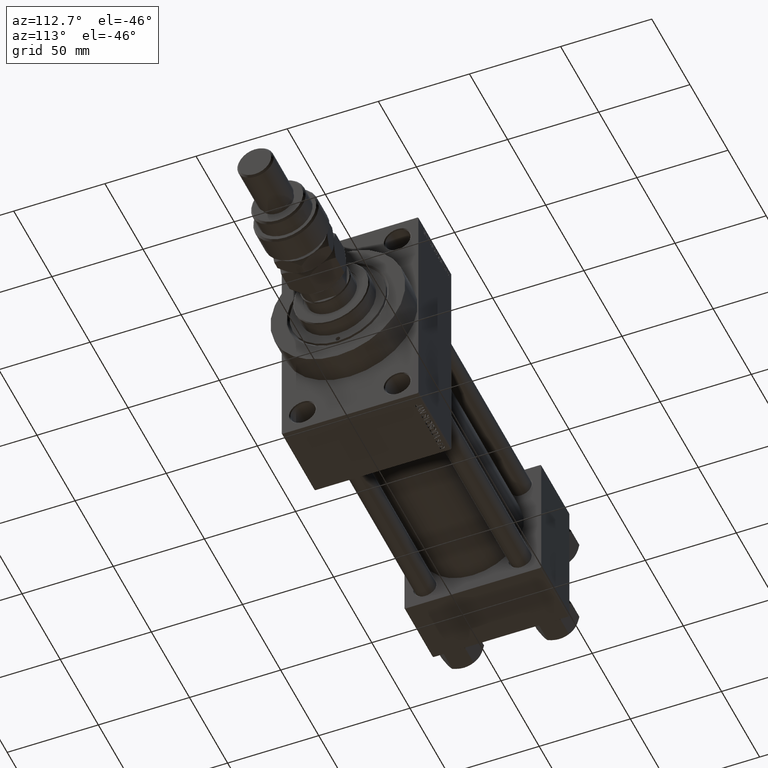
[diagram: clean part render]
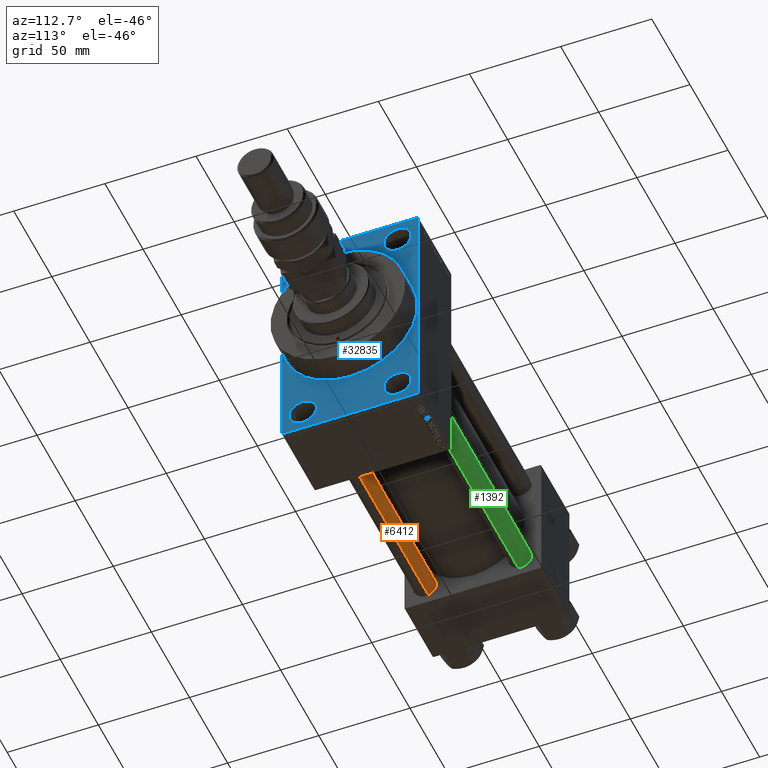
[diagram: same view with three faces highlighted in distinct colors, each labeled with its STEP entity id]
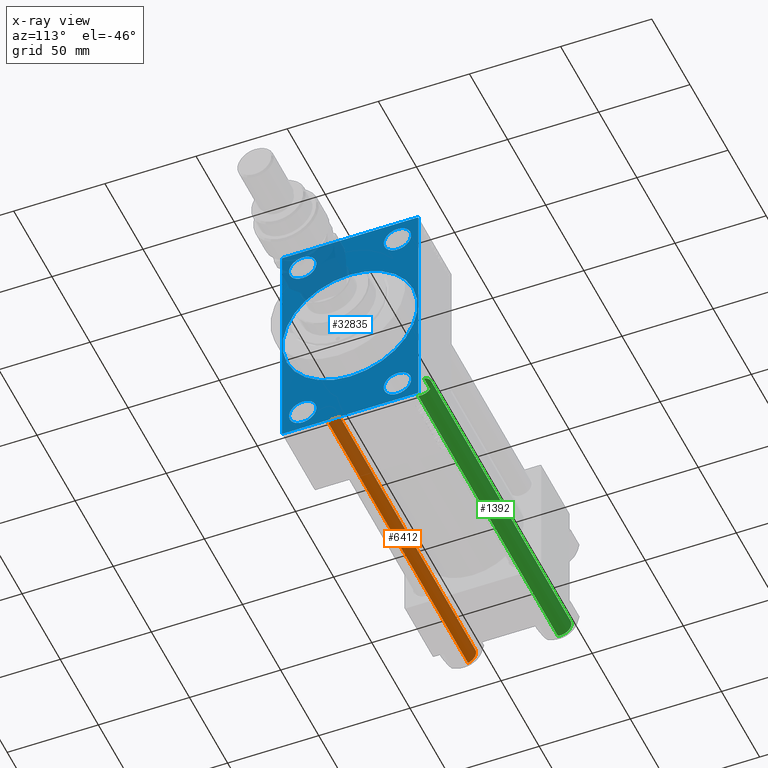
[diagram: x-ray of the same camera — body ghosted, the three highlighted faces saturated]
A machine part, auxiliary view with three faces highlighted in distinct colors.
The next image is the same camera in x-ray (body ghosted, the three faces saturated) — at least one of them is partly hidden behind the body in this view.
Their STEP definitions:

[orange] entity #6412 — the highlighted cylindrical surface (edge-blend (fillet) strip) has radius 6 mm, axis along (-1, 0, 0).
#99 = CARTESIAN_POINT ( 'NONE',  ( 0.000000000000000000, 0.000000000000000000, 0.5000000000000004441 ) ) ;
#994 = VECTOR ( 'NONE', #7781, 1000.000000000000000 ) ;
#2577 = EDGE_CURVE ( 'NONE', #36758, #30358, #22758, .T. ) ;
#2673 = FACE_OUTER_BOUND ( 'NONE', #46266, .T. ) ;
#4924 = DIRECTION ( 'NONE',  ( -0.000000000000000000, -0.000000000000000000, 1.000000000000000000 ) ) ;
#5034 = DIRECTION ( 'NONE',  ( 0.000000000000000000, 0.000000000000000000, -1.000000000000000000 ) ) ;
#5671 = ORIENTED_EDGE ( 'NONE', *, *, #2577, .T. ) ;
#6412 = ADVANCED_FACE ( 'NONE', ( #2673 ), #45346, .T. ) ;
#7194 = VERTEX_POINT ( 'NONE', #16973 ) ;
#7781 = DIRECTION ( 'NONE',  ( -0.000000000000000000, -0.000000000000000000, -1.000000000000000000 ) ) ;
#7841 = CARTESIAN_POINT ( 'NONE',  ( 0.000000000000000000, 0.000000000000000000, 183.5000000000000000 ) ) ;
#10037 = CARTESIAN_POINT ( 'NONE',  ( -6.000000000000000888, 0.000000000000000000, 0.5000000000000004441 ) ) ;
#10545 = CARTESIAN_POINT ( 'NONE',  ( 0.000000000000000000, 0.000000000000000000, 184.0000000000000000 ) ) ;
#12227 = VECTOR ( 'NONE', #39123, 1000.000000000000000 ) ;
#16309 = EDGE_CURVE ( 'NONE', #7194, #36758, #16502, .T. ) ;
#16502 = LINE ( 'NONE', #47477, #12227 ) ;
#16973 = CARTESIAN_POINT ( 'NONE',  ( -6.000000000000000888, 0.000000000000000000, 183.5000000000000000 ) ) ;
#17233 = CIRCLE ( 'NONE', #45613, 6.000000000000000888 ) ;
#19706 = EDGE_CURVE ( 'NONE', #29938, #30358, #27110, .T. ) ;
#22257 = DIRECTION ( 'NONE',  ( -0.000000000000000000, -0.000000000000000000, -1.000000000000000000 ) ) ;
#22758 = CIRCLE ( 'NONE', #49500, 6.000000000000000888 ) ;
#23202 = EDGE_CURVE ( 'NONE', #29938, #7194, #17233, .T. ) ;
#27110 = LINE ( 'NONE', #42592, #994 ) ;
#28916 = CARTESIAN_POINT ( 'NONE',  ( 6.000000000000000888, 7.347880794884120722E-16, 0.5000000000000004441 ) ) ;
#29938 = VERTEX_POINT ( 'NONE', #48261 ) ;
#30358 = VERTEX_POINT ( 'NONE', #28916 ) ;
#31949 = ORIENTED_EDGE ( 'NONE', *, *, #23202, .T. ) ;
#35856 = ORIENTED_EDGE ( 'NONE', *, *, #19706, .F. ) ;
#36758 = VERTEX_POINT ( 'NONE', #10037 ) ;
#37738 = DIRECTION ( 'NONE',  ( -1.000000000000000000, 0.000000000000000000, 0.000000000000000000 ) ) ;
#39096 = AXIS2_PLACEMENT_3D ( 'NONE', #10545, #22257, #37738 ) ;
#39123 = DIRECTION ( 'NONE',  ( -0.000000000000000000, -0.000000000000000000, -1.000000000000000000 ) ) ;
#42592 = CARTESIAN_POINT ( 'NONE',  ( 6.000000000000000888, 7.347880794884120722E-16, 184.0000000000000000 ) ) ;
#42820 = ORIENTED_EDGE ( 'NONE', *, *, #16309, .T. ) ;
#43536 = DIRECTION ( 'NONE',  ( 1.000000000000000000, 0.000000000000000000, 0.000000000000000000 ) ) ;
#43644 = DIRECTION ( 'NONE',  ( 1.000000000000000000, 0.000000000000000000, 0.000000000000000000 ) ) ;
#45346 = CYLINDRICAL_SURFACE ( 'NONE', #39096, 6.000000000000000888 ) ;
#45613 = AXIS2_PLACEMENT_3D ( 'NONE', #7841, #5034, #43644 ) ;
#46266 = EDGE_LOOP ( 'NONE', ( #35856, #31949, #42820, #5671 ) ) ;
#47477 = CARTESIAN_POINT ( 'NONE',  ( -6.000000000000000888, 0.000000000000000000, 184.0000000000000000 ) ) ;
#48261 = CARTESIAN_POINT ( 'NONE',  ( 6.000000000000000888, 7.347880794884120722E-16, 183.5000000000000000 ) ) ;
#49500 = AXIS2_PLACEMENT_3D ( 'NONE', #99, #4924, #43536 ) ;

[blue] entity #32835 — the highlighted planar face has unit normal (-1, 0, 0).
#214 = ORIENTED_EDGE ( 'NONE', *, *, #40358, .T. ) ;
#828 = EDGE_LOOP ( 'NONE', ( #14433, #22025 ) ) ;
#1426 = CARTESIAN_POINT ( 'NONE',  ( 198.0000000000000000, -25.99999999999999645, -52.49999999999999289 ) ) ;
#1756 = VERTEX_POINT ( 'NONE', #34544 ) ;
#1800 = DIRECTION ( 'NONE',  ( -1.000000000000000000, 0.000000000000000000, -0.000000000000000000 ) ) ;
#2052 = AXIS2_PLACEMENT_3D ( 'NONE', #24609, #36539, #35782 ) ;
#2081 = CIRCLE ( 'NONE', #4504, 37.00000000000000000 ) ;
#2096 = VECTOR ( 'NONE', #12118, 1000.000000000000000 ) ;
#2691 = CARTESIAN_POINT ( 'NONE',  ( 198.0000000000000000, 26.00000000000000000, 52.49999999999999289 ) ) ;
#3675 = ORIENTED_EDGE ( 'NONE', *, *, #48098, .T. ) ;
#3875 = EDGE_CURVE ( 'NONE', #5883, #28943, #12191, .T. ) ;
#3899 = AXIS2_PLACEMENT_3D ( 'NONE', #20051, #45948, #42401 ) ;
#4504 = AXIS2_PLACEMENT_3D ( 'NONE', #22760, #49920, #10804 ) ;
#4986 = CARTESIAN_POINT ( 'NONE',  ( 198.0000000000000000, 26.00000000000000000, 45.00000000000001421 ) ) ;
#5690 = ORIENTED_EDGE ( 'NONE', *, *, #34322, .F. ) ;
#5883 = VERTEX_POINT ( 'NONE', #15478 ) ;
#5985 = CIRCLE ( 'NONE', #21411, 7.499999999999978684 ) ;
#6217 = CARTESIAN_POINT ( 'NONE',  ( 198.0000000000000000, 37.50000000000000000, 63.99999999999998579 ) ) ;
#6239 = VECTOR ( 'NONE', #28756, 1000.000000000000114 ) ;
#6549 = EDGE_CURVE ( 'NONE', #48046, #17683, #26161, .T. ) ;
#6899 = LINE ( 'NONE', #30045, #35064 ) ;
#7030 = DIRECTION ( 'NONE',  ( -0.000000000000000000, 0.7071067811865376918, 0.7071067811865573427 ) ) ;
#7332 = LINE ( 'NONE', #46928, #2096 ) ;
#7365 = CARTESIAN_POINT ( 'NONE',  ( 198.0000000000000000, -36.99999999999999289, -64.00000000000001421 ) ) ;
#7879 = ORIENTED_EDGE ( 'NONE', *, *, #30379, .T. ) ;
#8585 = FACE_BOUND ( 'NONE', #32070, .T. ) ;
#9068 = CARTESIAN_POINT ( 'NONE',  ( 198.0000000000000000, 37.50000000000000000, 63.99999999999998579 ) ) ;
#9318 = VERTEX_POINT ( 'NONE', #28863 ) ;
#9588 = VECTOR ( 'NONE', #21149, 1000.000000000000000 ) ;
#10022 = LINE ( 'NONE', #6217, #35862 ) ;
#10155 = EDGE_CURVE ( 'NONE', #16232, #15195, #35542, .T. ) ;
#10259 = EDGE_LOOP ( 'NONE', ( #11127, #5690 ) ) ;
#10653 = ORIENTED_EDGE ( 'NONE', *, *, #38908, .T. ) ;
#10804 = DIRECTION ( 'NONE',  ( 0.000000000000000000, 0.000000000000000000, -1.000000000000000000 ) ) ;
#10868 = CARTESIAN_POINT ( 'NONE',  ( 198.0000000000000000, 4.531193156845206793E-15, -37.00000000000000000 ) ) ;
#11089 = AXIS2_PLACEMENT_3D ( 'NONE', #12214, #16557, #47785 ) ;
#11119 = VERTEX_POINT ( 'NONE', #10868 ) ;
#11127 = ORIENTED_EDGE ( 'NONE', *, *, #40912, .F. ) ;
#11563 = VERTEX_POINT ( 'NONE', #48920 ) ;
#11757 = DIRECTION ( 'NONE',  ( 0.000000000000000000, 0.000000000000000000, -1.000000000000000000 ) ) ;
#12118 = DIRECTION ( 'NONE',  ( -0.000000000000000000, -0.7071067811865524577, -0.7071067811865426878 ) ) ;
#12191 = CIRCLE ( 'NONE', #32504, 7.499999999999978684 ) ;
#12214 = CARTESIAN_POINT ( 'NONE',  ( 198.0000000000000000, -25.99999999999999645, 52.50000000000000000 ) ) ;
#12396 = VERTEX_POINT ( 'NONE', #13418 ) ;
#13351 = VERTEX_POINT ( 'NONE', #38062 ) ;
#13418 = CARTESIAN_POINT ( 'NONE',  ( 198.0000000000000000, -37.00000000000001421, 63.99999999999997158 ) ) ;
#13565 = EDGE_CURVE ( 'NONE', #17683, #48046, #5985, .T. ) ;
#13610 = EDGE_LOOP ( 'NONE', ( #25966, #23331 ) ) ;
#13638 = DIRECTION ( 'NONE',  ( 0.000000000000000000, -1.000000000000000000, -1.850371707708594563E-16 ) ) ;
#13836 = CARTESIAN_POINT ( 'NONE',  ( 198.0000000000000000, -25.99999999999999645, 59.99999999999997868 ) ) ;
#14137 = CARTESIAN_POINT ( 'NONE',  ( 198.0000000000000000, -25.99999999999999645, -45.00000000000001421 ) ) ;
#14433 = ORIENTED_EDGE ( 'NONE', *, *, #14447, .T. ) ;
#14447 = EDGE_CURVE ( 'NONE', #38131, #31028, #42502, .T. ) ;
#15133 = DIRECTION ( 'NONE',  ( -1.000000000000000000, 0.000000000000000000, -0.000000000000000000 ) ) ;
#15195 = VERTEX_POINT ( 'NONE', #7365 ) ;
#15478 = CARTESIAN_POINT ( 'NONE',  ( 198.0000000000000000, -25.99999999999999645, 45.00000000000002132 ) ) ;
#15871 = VECTOR ( 'NONE', #7030, 1000.000000000000114 ) ;
#16121 = EDGE_LOOP ( 'NONE', ( #10653, #40069, #23031, #7879, #45466, #49740, #21273, #214 ) ) ;
#16232 = VERTEX_POINT ( 'NONE', #23637 ) ;
#16557 = DIRECTION ( 'NONE',  ( -1.000000000000000000, 0.000000000000000000, -0.000000000000000000 ) ) ;
#16940 = DIRECTION ( 'NONE',  ( -1.000000000000000000, 0.000000000000000000, -0.000000000000000000 ) ) ;
#17601 = CIRCLE ( 'NONE', #11089, 7.499999999999978684 ) ;
#17683 = VERTEX_POINT ( 'NONE', #14137 ) ;
#18340 = AXIS2_PLACEMENT_3D ( 'NONE', #30362, #31100, #11757 ) ;
#20051 = CARTESIAN_POINT ( 'NONE',  ( 198.0000000000000000, 26.00000000000000000, 52.49999999999999289 ) ) ;
#20303 = FACE_OUTER_BOUND ( 'NONE', #16121, .T. ) ;
#20643 = CARTESIAN_POINT ( 'NONE',  ( 198.0000000000000000, -37.49999999999999289, 63.99999999999997158 ) ) ;
#20786 = EDGE_CURVE ( 'NONE', #13351, #12396, #28652, .T. ) ;
#20881 = LINE ( 'NONE', #36361, #6239 ) ;
#21149 = DIRECTION ( 'NONE',  ( 0.000000000000000000, 0.000000000000000000, -1.000000000000000000 ) ) ;
#21273 = ORIENTED_EDGE ( 'NONE', *, *, #20786, .T. ) ;
#21411 = AXIS2_PLACEMENT_3D ( 'NONE', #1426, #16940, #32445 ) ;
#21596 = CIRCLE ( 'NONE', #18340, 37.00000000000000000 ) ;
#21807 = EDGE_CURVE ( 'NONE', #22275, #46552, #10022, .T. ) ;
#22025 = ORIENTED_EDGE ( 'NONE', *, *, #46208, .T. ) ;
#22205 = EDGE_CURVE ( 'NONE', #23675, #15195, #6899, .T. ) ;
#22275 = VERTEX_POINT ( 'NONE', #35333 ) ;
#22760 = CARTESIAN_POINT ( 'NONE',  ( 198.0000000000000000, 0.000000000000000000, 0.000000000000000000 ) ) ;
#22919 = DIRECTION ( 'NONE',  ( -1.000000000000000000, 0.000000000000000000, -0.000000000000000000 ) ) ;
#23031 = ORIENTED_EDGE ( 'NONE', *, *, #10155, .F. ) ;
#23331 = ORIENTED_EDGE ( 'NONE', *, *, #42683, .T. ) ;
#23548 = CARTESIAN_POINT ( 'NONE',  ( 198.0000000000000000, 37.49999999999999289, -63.50000000000001421 ) ) ;
#23637 = CARTESIAN_POINT ( 'NONE',  ( 198.0000000000000000, 37.00000000000002132, -64.00000000000000000 ) ) ;
#23675 = VERTEX_POINT ( 'NONE', #28614 ) ;
#24102 = FACE_BOUND ( 'NONE', #828, .T. ) ;
#24609 = CARTESIAN_POINT ( 'NONE',  ( 198.0000000000000000, 0.000000000000000000, 0.000000000000000000 ) ) ;
#25495 = CARTESIAN_POINT ( 'NONE',  ( 198.0000000000000000, 26.00000000000000000, 59.99999999999997158 ) ) ;
#25828 = CIRCLE ( 'NONE', #3899, 7.499999999999978684 ) ;
#25966 = ORIENTED_EDGE ( 'NONE', *, *, #3875, .T. ) ;
#26082 = VERTEX_POINT ( 'NONE', #45708 ) ;
#26161 = CIRCLE ( 'NONE', #31812, 7.499999999999978684 ) ;
#26913 = VECTOR ( 'NONE', #13638, 1000.000000000000000 ) ;
#27068 = VECTOR ( 'NONE', #46466, 1000.000000000000000 ) ;
#27431 = CARTESIAN_POINT ( 'NONE',  ( 198.0000000000000000, 37.49999999999999289, -64.00000000000000000 ) ) ;
#27519 = DIRECTION ( 'NONE',  ( -1.000000000000000000, 0.000000000000000000, -0.000000000000000000 ) ) ;
#27756 = DIRECTION ( 'NONE',  ( -1.000000000000000000, 0.000000000000000000, -0.000000000000000000 ) ) ;
#28614 = CARTESIAN_POINT ( 'NONE',  ( 198.0000000000000000, -37.49999999999999289, -63.50000000000002842 ) ) ;
#28652 = LINE ( 'NONE', #9068, #26913 ) ;
#28756 = DIRECTION ( 'NONE',  ( 0.000000000000000000, -0.7071067811865474617, 0.7071067811865474617 ) ) ;
#28863 = CARTESIAN_POINT ( 'NONE',  ( 198.0000000000000000, -37.49999999999999289, 63.50000000000000000 ) ) ;
#28943 = VERTEX_POINT ( 'NONE', #13836 ) ;
#30045 = CARTESIAN_POINT ( 'NONE',  ( 198.0000000000000000, -36.99999999999999289, -64.00000000000001421 ) ) ;
#30288 = ORIENTED_EDGE ( 'NONE', *, *, #13565, .T. ) ;
#30362 = CARTESIAN_POINT ( 'NONE',  ( 198.0000000000000000, 0.000000000000000000, 0.000000000000000000 ) ) ;
#30379 = EDGE_CURVE ( 'NONE', #16232, #46552, #33972, .T. ) ;
#30768 = CIRCLE ( 'NONE', #42929, 7.499999999999978684 ) ;
#31028 = VERTEX_POINT ( 'NONE', #25495 ) ;
#31100 = DIRECTION ( 'NONE',  ( 1.000000000000000000, 0.000000000000000000, 0.000000000000000000 ) ) ;
#31812 = AXIS2_PLACEMENT_3D ( 'NONE', #35427, #1800, #31875 ) ;
#31875 = DIRECTION ( 'NONE',  ( 0.000000000000000000, 0.000000000000000000, 1.000000000000000000 ) ) ;
#32070 = EDGE_LOOP ( 'NONE', ( #3675, #42133 ) ) ;
#32445 = DIRECTION ( 'NONE',  ( 0.000000000000000000, 0.000000000000000000, 1.000000000000000000 ) ) ;
#32504 = AXIS2_PLACEMENT_3D ( 'NONE', #42463, #22919, #46747 ) ;
#32757 = AXIS2_PLACEMENT_3D ( 'NONE', #2691, #15133, #45622 ) ;
#32835 = ADVANCED_FACE ( 'NONE', ( #40098, #39838, #8585, #24102, #39589, #20303 ), #39347, .F. ) ;
#33400 = DIRECTION ( 'NONE',  ( 0.000000000000000000, -5.421010862427522170E-17, -1.000000000000000000 ) ) ;
#33972 = LINE ( 'NONE', #23548, #15871 ) ;
#34322 = EDGE_CURVE ( 'NONE', #11119, #11563, #2081, .T. ) ;
#34544 = CARTESIAN_POINT ( 'NONE',  ( 198.0000000000000000, 26.00000000000000000, -59.99999999999997158 ) ) ;
#34719 = EDGE_CURVE ( 'NONE', #26082, #1756, #37854, .T. ) ;
#35064 = VECTOR ( 'NONE', #45512, 1000.000000000000000 ) ;
#35333 = CARTESIAN_POINT ( 'NONE',  ( 198.0000000000000000, 37.50000000000000000, 63.49999999999998579 ) ) ;
#35427 = CARTESIAN_POINT ( 'NONE',  ( 198.0000000000000000, -25.99999999999999645, -52.49999999999999289 ) ) ;
#35542 = LINE ( 'NONE', #27431, #27068 ) ;
#35633 = CARTESIAN_POINT ( 'NONE',  ( 198.0000000000000000, 26.00000000000000000, -52.49999999999999289 ) ) ;
#35782 = DIRECTION ( 'NONE',  ( -0.000000000000000000, 0.000000000000000000, 1.000000000000000000 ) ) ;
#35862 = VECTOR ( 'NONE', #33400, 1000.000000000000000 ) ;
#35878 = LINE ( 'NONE', #20643, #9588 ) ;
#36361 = CARTESIAN_POINT ( 'NONE',  ( 198.0000000000000000, 37.00000000000000000, 63.99999999999998579 ) ) ;
#36539 = DIRECTION ( 'NONE',  ( -1.000000000000000000, 0.000000000000000000, -0.000000000000000000 ) ) ;
#37552 = EDGE_LOOP ( 'NONE', ( #43619, #30288 ) ) ;
#37854 = CIRCLE ( 'NONE', #41880, 7.499999999999978684 ) ;
#38062 = CARTESIAN_POINT ( 'NONE',  ( 198.0000000000000000, 37.00000000000000000, 63.99999999999998579 ) ) ;
#38131 = VERTEX_POINT ( 'NONE', #4986 ) ;
#38908 = EDGE_CURVE ( 'NONE', #9318, #23675, #35878, .T. ) ;
#39347 = PLANE ( 'NONE',  #2052 ) ;
#39424 = DIRECTION ( 'NONE',  ( 0.000000000000000000, 0.000000000000000000, 1.000000000000000000 ) ) ;
#39589 = FACE_BOUND ( 'NONE', #10259, .T. ) ;
#39838 = FACE_BOUND ( 'NONE', #37552, .T. ) ;
#40069 = ORIENTED_EDGE ( 'NONE', *, *, #22205, .T. ) ;
#40098 = FACE_BOUND ( 'NONE', #13610, .T. ) ;
#40358 = EDGE_CURVE ( 'NONE', #12396, #9318, #7332, .T. ) ;
#40912 = EDGE_CURVE ( 'NONE', #11563, #11119, #21596, .T. ) ;
#41880 = AXIS2_PLACEMENT_3D ( 'NONE', #47791, #27756, #39424 ) ;
#42133 = ORIENTED_EDGE ( 'NONE', *, *, #34719, .T. ) ;
#42401 = DIRECTION ( 'NONE',  ( 0.000000000000000000, 0.000000000000000000, 1.000000000000000000 ) ) ;
#42463 = CARTESIAN_POINT ( 'NONE',  ( 198.0000000000000000, -25.99999999999999645, 52.50000000000000000 ) ) ;
#42502 = CIRCLE ( 'NONE', #32757, 7.499999999999978684 ) ;
#42683 = EDGE_CURVE ( 'NONE', #28943, #5883, #17601, .T. ) ;
#42776 = EDGE_CURVE ( 'NONE', #22275, #13351, #20881, .T. ) ;
#42929 = AXIS2_PLACEMENT_3D ( 'NONE', #35633, #27519, #43002 ) ;
#43002 = DIRECTION ( 'NONE',  ( 0.000000000000000000, 0.000000000000000000, 1.000000000000000000 ) ) ;
#43252 = CARTESIAN_POINT ( 'NONE',  ( 198.0000000000000000, -25.99999999999999645, -59.99999999999997158 ) ) ;
#43619 = ORIENTED_EDGE ( 'NONE', *, *, #6549, .T. ) ;
#45466 = ORIENTED_EDGE ( 'NONE', *, *, #21807, .F. ) ;
#45512 = DIRECTION ( 'NONE',  ( 0.000000000000000000, 0.7071067811865573427, -0.7071067811865378028 ) ) ;
#45622 = DIRECTION ( 'NONE',  ( 0.000000000000000000, 0.000000000000000000, 1.000000000000000000 ) ) ;
#45708 = CARTESIAN_POINT ( 'NONE',  ( 198.0000000000000000, 26.00000000000000000, -45.00000000000001421 ) ) ;
#45948 = DIRECTION ( 'NONE',  ( -1.000000000000000000, 0.000000000000000000, -0.000000000000000000 ) ) ;
#46208 = EDGE_CURVE ( 'NONE', #31028, #38131, #25828, .T. ) ;
#46466 = DIRECTION ( 'NONE',  ( 0.000000000000000000, -1.000000000000000000, -1.850371707708594563E-16 ) ) ;
#46552 = VERTEX_POINT ( 'NONE', #48088 ) ;
#46747 = DIRECTION ( 'NONE',  ( 0.000000000000000000, 0.000000000000000000, 1.000000000000000000 ) ) ;
#46928 = CARTESIAN_POINT ( 'NONE',  ( 198.0000000000000000, -37.49999999999999289, 63.50000000000000000 ) ) ;
#47785 = DIRECTION ( 'NONE',  ( 0.000000000000000000, 0.000000000000000000, 1.000000000000000000 ) ) ;
#47791 = CARTESIAN_POINT ( 'NONE',  ( 198.0000000000000000, 26.00000000000000000, -52.49999999999999289 ) ) ;
#48046 = VERTEX_POINT ( 'NONE', #43252 ) ;
#48088 = CARTESIAN_POINT ( 'NONE',  ( 198.0000000000000000, 37.49999999999999289, -63.50000000000001421 ) ) ;
#48098 = EDGE_CURVE ( 'NONE', #1756, #26082, #30768, .T. ) ;
#48920 = CARTESIAN_POINT ( 'NONE',  ( 198.0000000000000000, 0.000000000000000000, 37.00000000000000000 ) ) ;
#49740 = ORIENTED_EDGE ( 'NONE', *, *, #42776, .T. ) ;
#49920 = DIRECTION ( 'NONE',  ( 1.000000000000000000, 0.000000000000000000, 0.000000000000000000 ) ) ;

[green] entity #1392 — the highlighted cylindrical surface (edge-blend (fillet) strip) has radius 6 mm, axis along (1, -0, 0).
#432 = ORIENTED_EDGE ( 'NONE', *, *, #19706, .T. ) ;
#994 = VECTOR ( 'NONE', #7781, 1000.000000000000000 ) ;
#1392 = ADVANCED_FACE ( 'NONE', ( #48839 ), #22190, .T. ) ;
#1836 = CIRCLE ( 'NONE', #36744, 6.000000000000000888 ) ;
#6422 = DIRECTION ( 'NONE',  ( -1.000000000000000000, 0.000000000000000000, 0.000000000000000000 ) ) ;
#6478 = DIRECTION ( 'NONE',  ( 1.000000000000000000, 0.000000000000000000, 0.000000000000000000 ) ) ;
#7194 = VERTEX_POINT ( 'NONE', #16973 ) ;
#7781 = DIRECTION ( 'NONE',  ( -0.000000000000000000, -0.000000000000000000, -1.000000000000000000 ) ) ;
#9339 = EDGE_CURVE ( 'NONE', #30358, #36758, #1836, .T. ) ;
#9537 = DIRECTION ( 'NONE',  ( -0.000000000000000000, -0.000000000000000000, 1.000000000000000000 ) ) ;
#10037 = CARTESIAN_POINT ( 'NONE',  ( -6.000000000000000888, 0.000000000000000000, 0.5000000000000004441 ) ) ;
#12227 = VECTOR ( 'NONE', #39123, 1000.000000000000000 ) ;
#16309 = EDGE_CURVE ( 'NONE', #7194, #36758, #16502, .T. ) ;
#16502 = LINE ( 'NONE', #47477, #12227 ) ;
#16774 = EDGE_LOOP ( 'NONE', ( #50262, #432, #28072, #22522 ) ) ;
#16973 = CARTESIAN_POINT ( 'NONE',  ( -6.000000000000000888, 0.000000000000000000, 183.5000000000000000 ) ) ;
#17376 = CARTESIAN_POINT ( 'NONE',  ( 0.000000000000000000, 0.000000000000000000, 184.0000000000000000 ) ) ;
#19175 = AXIS2_PLACEMENT_3D ( 'NONE', #21977, #33904, #36716 ) ;
#19706 = EDGE_CURVE ( 'NONE', #29938, #30358, #27110, .T. ) ;
#21977 = CARTESIAN_POINT ( 'NONE',  ( 0.000000000000000000, 0.000000000000000000, 183.5000000000000000 ) ) ;
#22190 = CYLINDRICAL_SURFACE ( 'NONE', #45394, 6.000000000000000888 ) ;
#22522 = ORIENTED_EDGE ( 'NONE', *, *, #16309, .F. ) ;
#27110 = LINE ( 'NONE', #42592, #994 ) ;
#28072 = ORIENTED_EDGE ( 'NONE', *, *, #9339, .T. ) ;
#28916 = CARTESIAN_POINT ( 'NONE',  ( 6.000000000000000888, 7.347880794884120722E-16, 0.5000000000000004441 ) ) ;
#29938 = VERTEX_POINT ( 'NONE', #48261 ) ;
#30358 = VERTEX_POINT ( 'NONE', #28916 ) ;
#32870 = DIRECTION ( 'NONE',  ( -0.000000000000000000, -0.000000000000000000, -1.000000000000000000 ) ) ;
#33904 = DIRECTION ( 'NONE',  ( 0.000000000000000000, 0.000000000000000000, -1.000000000000000000 ) ) ;
#36716 = DIRECTION ( 'NONE',  ( 1.000000000000000000, 0.000000000000000000, 0.000000000000000000 ) ) ;
#36744 = AXIS2_PLACEMENT_3D ( 'NONE', #44341, #9537, #6478 ) ;
#36758 = VERTEX_POINT ( 'NONE', #10037 ) ;
#39123 = DIRECTION ( 'NONE',  ( -0.000000000000000000, -0.000000000000000000, -1.000000000000000000 ) ) ;
#40878 = EDGE_CURVE ( 'NONE', #7194, #29938, #41060, .T. ) ;
#41060 = CIRCLE ( 'NONE', #19175, 6.000000000000000888 ) ;
#42592 = CARTESIAN_POINT ( 'NONE',  ( 6.000000000000000888, 7.347880794884120722E-16, 184.0000000000000000 ) ) ;
#44341 = CARTESIAN_POINT ( 'NONE',  ( 0.000000000000000000, 0.000000000000000000, 0.5000000000000004441 ) ) ;
#45394 = AXIS2_PLACEMENT_3D ( 'NONE', #17376, #32870, #6422 ) ;
#47477 = CARTESIAN_POINT ( 'NONE',  ( -6.000000000000000888, 0.000000000000000000, 184.0000000000000000 ) ) ;
#48261 = CARTESIAN_POINT ( 'NONE',  ( 6.000000000000000888, 7.347880794884120722E-16, 183.5000000000000000 ) ) ;
#48839 = FACE_OUTER_BOUND ( 'NONE', #16774, .T. ) ;
#50262 = ORIENTED_EDGE ( 'NONE', *, *, #40878, .T. ) ;